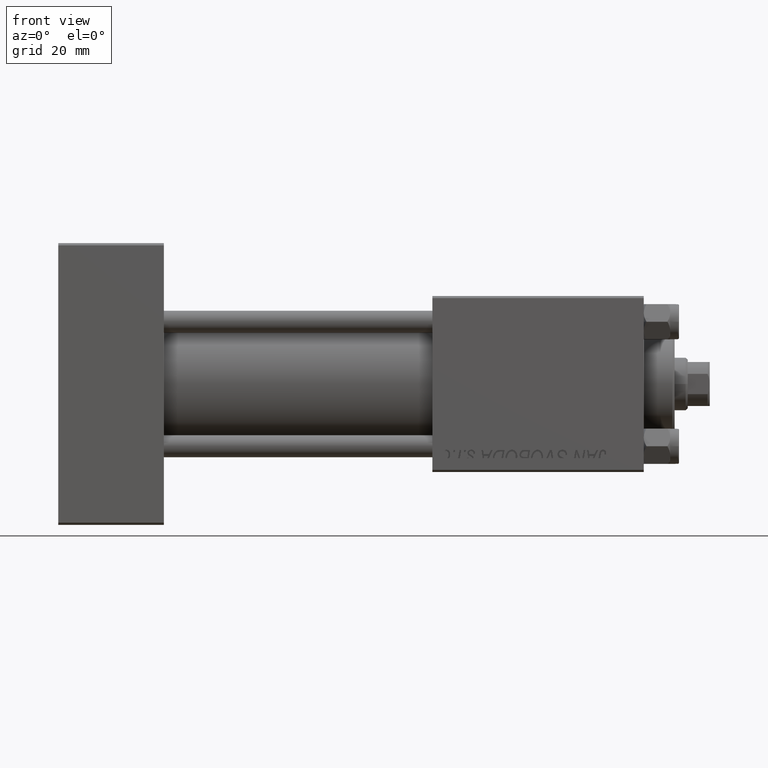
[diagram: clean part render]
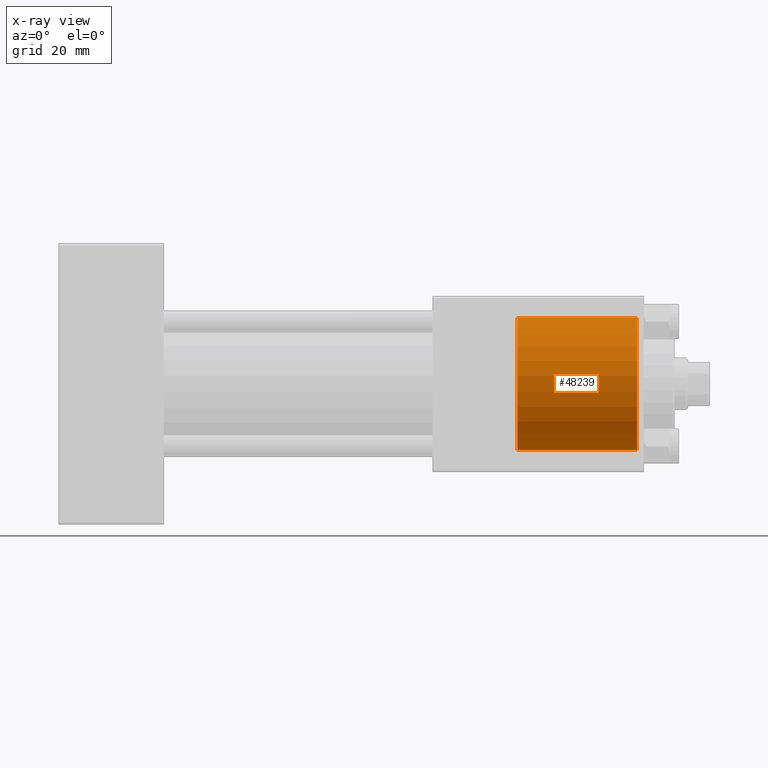
[diagram: x-ray — body ghosted, one internal face saturated and labeled with its STEP entity id]
A machine part, front view, then the same camera in x-ray: the body is ghosted and one INTERNAL B-rep face — a face not visible from any outside direction — is saturated and labeled: STEP entity #48239.
In plain terms, the highlighted cylindrical surface (partial cylindrical patch) has radius 15 mm, axis along (1, 0, 0).
Its self-contained STEP definition (entity closure, byte-faithful):
#410 = VERTEX_POINT ( 'NONE', #14507 ) ;
#1904 = VERTEX_POINT ( 'NONE', #44735 ) ;
#3541 = ORIENTED_EDGE ( 'NONE', *, *, #26520, .T. ) ;
#3623 = DIRECTION ( 'NONE',  ( 1.000000000000000000, 0.000000000000000000, 0.000000000000000000 ) ) ;
#5498 = EDGE_CURVE ( 'NONE', #21775, #1904, #13594, .T. ) ;
#6773 = AXIS2_PLACEMENT_3D ( 'NONE', #10609, #18696, #41672 ) ;
#7994 = CARTESIAN_POINT ( 'NONE',  ( 104.2999999999999972, 0.000000000000000000, -15.00000000000000000 ) ) ;
#8987 = EDGE_LOOP ( 'NONE', ( #20979, #3541, #35037, #10430 ) ) ;
#9519 = LINE ( 'NONE', #17112, #33421 ) ;
#10430 = ORIENTED_EDGE ( 'NONE', *, *, #15432, .F. ) ;
#10609 = CARTESIAN_POINT ( 'NONE',  ( 131.4999999999999716, 0.000000000000000000, 0.000000000000000000 ) ) ;
#13594 = CIRCLE ( 'NONE', #36988, 15.00000000000000000 ) ;
#14507 = CARTESIAN_POINT ( 'NONE',  ( 131.4999999999999716, 0.000000000000000000, -15.00000000000000000 ) ) ;
#14858 = CIRCLE ( 'NONE', #6773, 15.00000000000000000 ) ;
#15384 = DIRECTION ( 'NONE',  ( 0.000000000000000000, 0.000000000000000000, -1.000000000000000000 ) ) ;
#15432 = EDGE_CURVE ( 'NONE', #1904, #410, #26456, .T. ) ;
#17112 = CARTESIAN_POINT ( 'NONE',  ( 104.2999999999999972, 1.836970198721029589E-15, 15.00000000000000000 ) ) ;
#18696 = DIRECTION ( 'NONE',  ( 1.000000000000000000, 0.000000000000000000, 0.000000000000000000 ) ) ;
#18940 = CARTESIAN_POINT ( 'NONE',  ( 104.2999999999999972, 0.000000000000000000, 0.000000000000000000 ) ) ;
#20979 = ORIENTED_EDGE ( 'NONE', *, *, #5498, .F. ) ;
#21775 = VERTEX_POINT ( 'NONE', #46854 ) ;
#26108 = CARTESIAN_POINT ( 'NONE',  ( 104.2999999999999972, 0.000000000000000000, 0.000000000000000000 ) ) ;
#26456 = LINE ( 'NONE', #7994, #47614 ) ;
#26520 = EDGE_CURVE ( 'NONE', #21775, #42587, #9519, .T. ) ;
#27674 = AXIS2_PLACEMENT_3D ( 'NONE', #18940, #38123, #15384 ) ;
#28722 = DIRECTION ( 'NONE',  ( 1.000000000000000000, -0.000000000000000000, -0.000000000000000000 ) ) ;
#33421 = VECTOR ( 'NONE', #28722, 1000.000000000000000 ) ;
#35024 = DIRECTION ( 'NONE',  ( 1.000000000000000000, -0.000000000000000000, -0.000000000000000000 ) ) ;
#35037 = ORIENTED_EDGE ( 'NONE', *, *, #49689, .T. ) ;
#36752 = FACE_OUTER_BOUND ( 'NONE', #8987, .T. ) ;
#36988 = AXIS2_PLACEMENT_3D ( 'NONE', #26108, #3623, #42247 ) ;
#38123 = DIRECTION ( 'NONE',  ( 1.000000000000000000, -0.000000000000000000, -0.000000000000000000 ) ) ;
#39414 = CARTESIAN_POINT ( 'NONE',  ( 131.4999999999999716, 1.836970198721029589E-15, 15.00000000000000000 ) ) ;
#41672 = DIRECTION ( 'NONE',  ( 0.000000000000000000, 0.000000000000000000, 1.000000000000000000 ) ) ;
#42247 = DIRECTION ( 'NONE',  ( 0.000000000000000000, 0.000000000000000000, -1.000000000000000000 ) ) ;
#42587 = VERTEX_POINT ( 'NONE', #39414 ) ;
#44735 = CARTESIAN_POINT ( 'NONE',  ( 104.2999999999999972, 0.000000000000000000, -15.00000000000000000 ) ) ;
#46680 = CYLINDRICAL_SURFACE ( 'NONE', #27674, 15.00000000000000000 ) ;
#46854 = CARTESIAN_POINT ( 'NONE',  ( 104.2999999999999972, 1.836970198721029589E-15, 15.00000000000000000 ) ) ;
#47614 = VECTOR ( 'NONE', #35024, 1000.000000000000000 ) ;
#48239 = ADVANCED_FACE ( 'NONE', ( #36752 ), #46680, .F. ) ;
#49689 = EDGE_CURVE ( 'NONE', #42587, #410, #14858, .T. ) ;